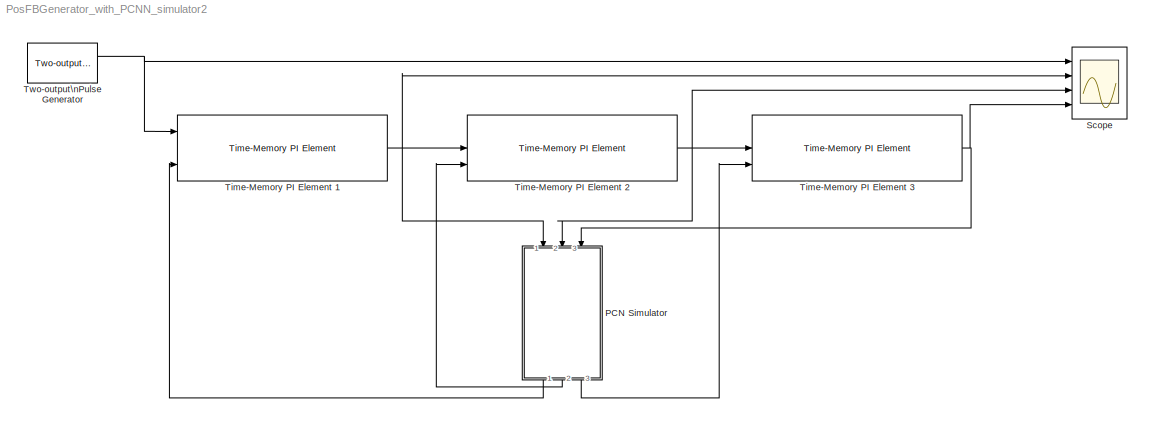
MODEL PosFBGenerator_with_PCNN_simulator2
KIND model
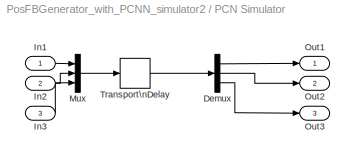
BLOCK [SubSystem] PCN Simulator
  Ports = [3, 3]
  RequestExecContextInheritance = off
  SID = 84
BLOCK [Demux] PCN Simulator/Demux
  DisplayOption = bar
  Outputs = 3
  Ports = [1, 3]
  SID = 88
BLOCK [Inport] PCN Simulator/In1
  IconDisplay = Port number
  SID = 85
BLOCK [Inport] PCN Simulator/In2
  IconDisplay = Port number
  Port = 2
  SID = 86
BLOCK [Inport] PCN Simulator/In3
  IconDisplay = Port number
  Port = 3
  SID = 87
BLOCK [Mux] PCN Simulator/Mux
  DisplayOption = bar
  Inputs = 3
  Ports = [3, 1]
  SID = 89
BLOCK [Outport] PCN Simulator/Out1
  IconDisplay = Port number
  SID = 91
BLOCK [Outport] PCN Simulator/Out2
  IconDisplay = Port number
  Port = 2
  SID = 92
BLOCK [Outport] PCN Simulator/Out3
  IconDisplay = Port number
  Port = 3
  SID = 93
BLOCK [TransportDelay] PCN Simulator/Transport\nDelay
  DelayTime = TimeDelay
  Ports = [1, 1]
  SID = 90
BLOCK [Scope] Scope
  DataFormat = StructureWithTime
  Floating = off
  MaxDataPoints = 500000
  NumInputPorts = 4
  Ports = [4]
  SID = 94
  SampleTime = 0
  SaveName = ScopeData1
  ShowLegends = off
  YMax = 1~1~1~1
  YMin = 0~-1~0~0
  ZoomMode = xonly
BLOCK [Reference] Time-Memory PI Element 1  REF=NeuroModelerLibrary/Memory Modules/Time-Memory PI Element
  Ports = [3, 1]
  SID = 81
  SourceBlock = NeuroModelerLibrary/Memory Modules/Time-Memory PI Element
  SourceType = SubSystem
BLOCK [Reference] Time-Memory PI Element 2  REF=NeuroModelerLibrary/Memory Modules/Time-Memory PI Element
  Ports = [3, 1]
  SID = 82
  SourceBlock = NeuroModelerLibrary/Memory Modules/Time-Memory PI Element
  SourceType = SubSystem
BLOCK [Reference] Time-Memory PI Element 3  REF=NeuroModelerLibrary/Memory Modules/Time-Memory PI Element
  Ports = [3, 1]
  SID = 83
  SourceBlock = NeuroModelerLibrary/Memory Modules/Time-Memory PI Element
  SourceType = SubSystem
BLOCK [Reference] Two-output\nPulse Generator  REF=NeuroModelerLibrary/Support/Two-output\nPulse Generator
  A = 1
  OOff1 = 7700
  OOff2 = 7000
  OOn1 = 2
  OOn2 = 0
  P1 = 10000
  P2 = 30
  PW = 1
  Ports = [0, 2]
  SID = 1
  ST = 0.001
  SourceBlock = NeuroModelerLibrary/Support/Two-output\nPulse Generator
LINE PCN Simulator/Demux:1 -> PCN Simulator/Out1:1
LINE PCN Simulator/Demux:2 -> PCN Simulator/Out2:1
LINE PCN Simulator/Demux:3 -> PCN Simulator/Out3:1
LINE PCN Simulator/In1:1 -> PCN Simulator/Mux:1
LINE PCN Simulator/In2:1 -> PCN Simulator/Mux:2
LINE PCN Simulator/In3:1 -> PCN Simulator/Mux:3
LINE PCN Simulator/Mux:1 -> PCN Simulator/Transport\nDelay:1
LINE PCN Simulator/Transport\nDelay:1 -> PCN Simulator/Demux:1
LINE PCN Simulator:1 -> Time-Memory PI Element 1:3
LINE PCN Simulator:2 -> Time-Memory PI Element 2:3
LINE PCN Simulator:3 -> Time-Memory PI Element 3:3
NET Time-Memory PI Element 1:1 -> PCN Simulator:1, Scope:2, Time-Memory PI Element 2:2
NET Time-Memory PI Element 2:1 -> PCN Simulator:2, Scope:3, Time-Memory PI Element 3:2
NET Time-Memory PI Element 3:1 -> PCN Simulator:3, Scope:4
NET Two-output\nPulse Generator:1 -> Scope:1, Time-Memory PI Element 1:1
note: NET lines group one-source signal fan-out (src -> all destinations, sorted); 1:1 wires keep LINE
